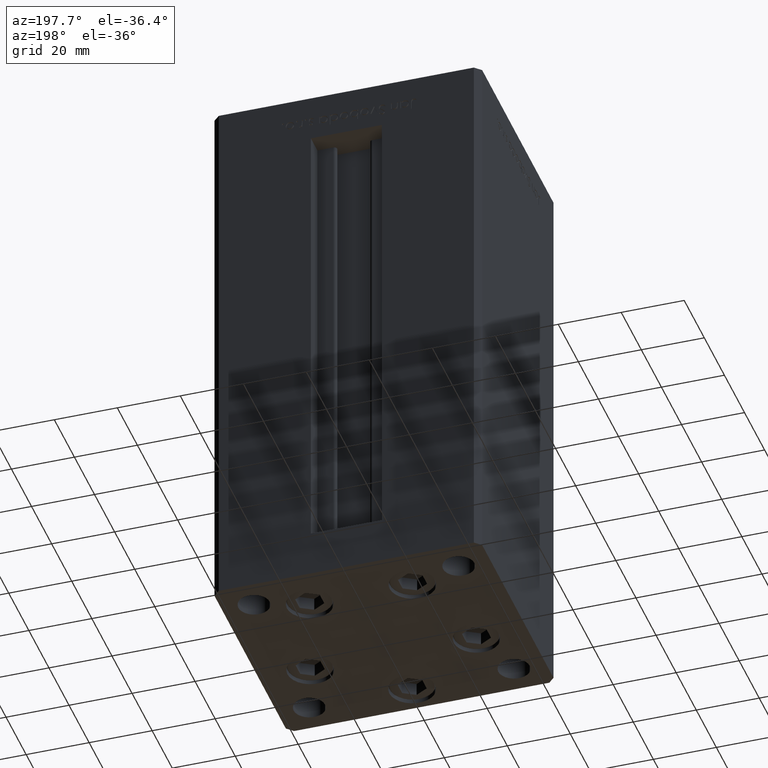
[diagram: clean part render]
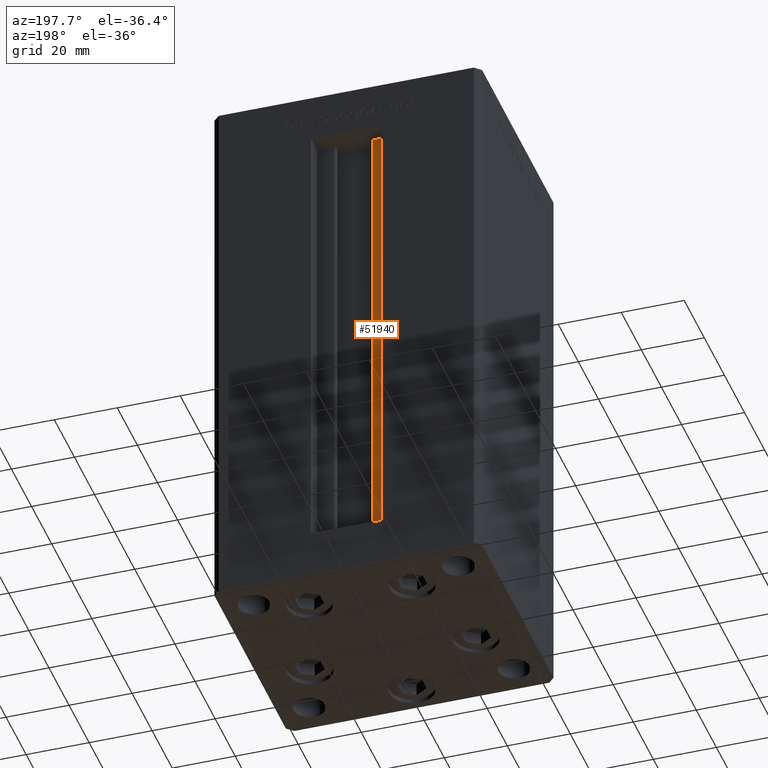
[diagram: same view with one face highlighted and labeled with its STEP entity id]
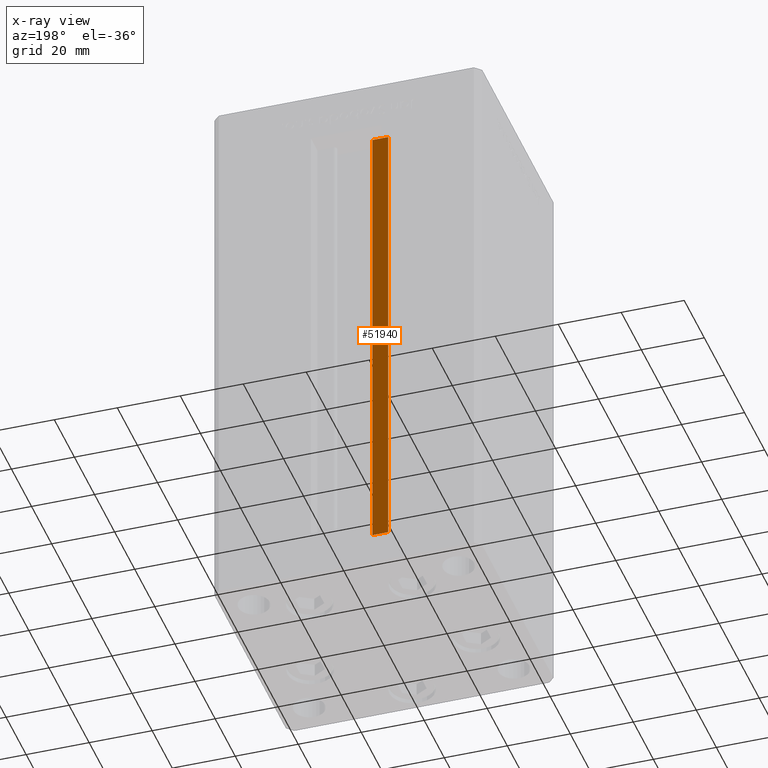
[diagram: x-ray of the same camera — body ghosted, the highlighted face saturated]
A machine part, auxiliary view. The second image highlights one B-rep face of the part: STEP entity #51940.
The next image is the same camera in x-ray: the body ghosted, the highlighted face saturated — about 0% of this face is hidden behind the body in this view.
In plain terms, the highlighted planar face has unit normal (0, -1, 0).
Its self-contained STEP definition (entity closure, byte-faithful):
#950 = EDGE_CURVE ( 'NONE', #24439, #3974, #50195, .T. ) ;
#2521 = ORIENTED_EDGE ( 'NONE', *, *, #3174, .T. ) ;
#3174 = EDGE_CURVE ( 'NONE', #24439, #46499, #9250, .T. ) ;
#3974 = VERTEX_POINT ( 'NONE', #33415 ) ;
#4325 = EDGE_CURVE ( 'NONE', #48179, #46499, #14064, .T. ) ;
#5588 = ORIENTED_EDGE ( 'NONE', *, *, #950, .F. ) ;
#8472 = DIRECTION ( 'NONE',  ( -0.000000000000000000, -0.000000000000000000, 1.000000000000000000 ) ) ;
#9250 = LINE ( 'NONE', #25113, #29370 ) ;
#9632 = CARTESIAN_POINT ( 'NONE',  ( -6.183333333333999704, 30.99999999999999289, 148.5000000000000000 ) ) ;
#9994 = FACE_OUTER_BOUND ( 'NONE', #14603, .T. ) ;
#10362 = CARTESIAN_POINT ( 'NONE',  ( 0.000000000000000000, 30.99999999999999289, 148.5000000000000000 ) ) ;
#10868 = CARTESIAN_POINT ( 'NONE',  ( -6.183333333333999704, 30.99999999999999289, 0.000000000000000000 ) ) ;
#12430 = CARTESIAN_POINT ( 'NONE',  ( -6.183333333333999704, 30.99999999999999289, 0.000000000000000000 ) ) ;
#14064 = LINE ( 'NONE', #10362, #47122 ) ;
#14603 = EDGE_LOOP ( 'NONE', ( #48169, #5588, #2521, #44672 ) ) ;
#16232 = AXIS2_PLACEMENT_3D ( 'NONE', #37476, #33246, #26116 ) ;
#19932 = CARTESIAN_POINT ( 'NONE',  ( -11.25000000000000000, 30.99999999999999289, 0.000000000000000000 ) ) ;
#20868 = VECTOR ( 'NONE', #42284, 1000.000000000000000 ) ;
#21642 = PLANE ( 'NONE',  #16232 ) ;
#21927 = DIRECTION ( 'NONE',  ( -0.000000000000000000, -0.000000000000000000, 1.000000000000000000 ) ) ;
#24439 = VERTEX_POINT ( 'NONE', #19932 ) ;
#24601 = LINE ( 'NONE', #12430, #32165 ) ;
#25113 = CARTESIAN_POINT ( 'NONE',  ( -11.25000000000000000, 30.99999999999999289, 0.000000000000000000 ) ) ;
#26116 = DIRECTION ( 'NONE',  ( 0.000000000000000000, 0.000000000000000000, -1.000000000000000000 ) ) ;
#27928 = CARTESIAN_POINT ( 'NONE',  ( -11.25000000000000000, 30.99999999999999289, 148.5000000000000000 ) ) ;
#29370 = VECTOR ( 'NONE', #21927, 1000.000000000000000 ) ;
#30166 = DIRECTION ( 'NONE',  ( -1.000000000000000000, 0.000000000000000000, 0.000000000000000000 ) ) ;
#32165 = VECTOR ( 'NONE', #8472, 1000.000000000000000 ) ;
#33246 = DIRECTION ( 'NONE',  ( 0.000000000000000000, -1.000000000000000000, -0.000000000000000000 ) ) ;
#33415 = CARTESIAN_POINT ( 'NONE',  ( -6.183333333333999704, 30.99999999999999289, 0.000000000000000000 ) ) ;
#37476 = CARTESIAN_POINT ( 'NONE',  ( -6.183333333333999704, 30.99999999999999289, 0.000000000000000000 ) ) ;
#42284 = DIRECTION ( 'NONE',  ( 1.000000000000000000, -0.000000000000000000, -0.000000000000000000 ) ) ;
#44672 = ORIENTED_EDGE ( 'NONE', *, *, #4325, .F. ) ;
#46499 = VERTEX_POINT ( 'NONE', #27928 ) ;
#47122 = VECTOR ( 'NONE', #30166, 1000.000000000000000 ) ;
#48169 = ORIENTED_EDGE ( 'NONE', *, *, #48303, .F. ) ;
#48179 = VERTEX_POINT ( 'NONE', #9632 ) ;
#48303 = EDGE_CURVE ( 'NONE', #3974, #48179, #24601, .T. ) ;
#50195 = LINE ( 'NONE', #10868, #20868 ) ;
#51940 = ADVANCED_FACE ( 'NONE', ( #9994 ), #21642, .F. ) ;